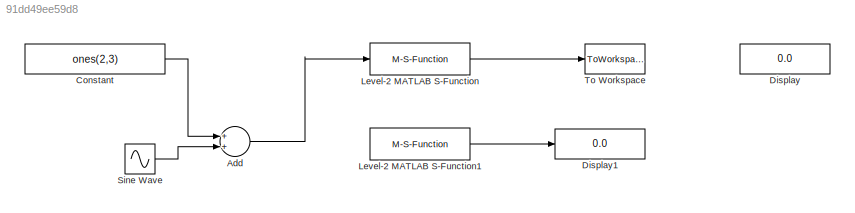
MODEL slx_91dd49ee59d8
KIND model
CONFIG AbsTol = auto
CONFIG FixedStep = auto
CONFIG MaxStep = auto
CONFIG MinStep = auto
CONFIG RelTol = 1e-3
CONFIG SampleTimeConstraint = Unconstrained
CONFIG Solver = FixedStepDiscrete
CONFIG SolverMode = Auto
CONFIG SolverName = FixedStepDiscrete
CONFIG StartTime = 0.0
CONFIG StopTime = 10.0
BLOCK [Sum] Add
  InputSameDT = off
  OutDataTypeStr = Inherit: Inherit via internal rule
  Ports = [2, 1]
  SaturateOnIntegerOverflow = off
BLOCK [Constant] Constant
  Value = ones(2,3)
BLOCK [Display] Display
  Decimation = 1
  Ports = [1]
BLOCK [Display] Display1
  Decimation = 1
  Ports = [1]
BLOCK [M-S-Function] Level-2 MATLAB S-Function
  FunctionName = dtranspose_sfun
  Ports = [1, 1]
BLOCK [M-S-Function] Level-2 MATLAB S-Function1
  Commented = on
  FunctionName = ddiag_sfun
  Ports = [1, 1]
BLOCK [Sin] Sine Wave
  Ports = [0, 1]
  SampleTime = 0.1
BLOCK [ToWorkspace] To Workspace
  FixptAsFi = on
  MaxDataPoints = inf
  Ports = [1]
  SampleTime = -1
  Save2DSignal = 3-D array (concatenate along third dimension)
  SaveFormat = Timeseries
  VariableName = simout
LINE Add:1 -> Level-2 MATLAB S-Function:1
LINE Constant:1 -> Add:1
LINE Level-2 MATLAB S-Function1:1 -> Display1:1
LINE Level-2 MATLAB S-Function:1 -> To Workspace:1
LINE Sine Wave:1 -> Add:2
